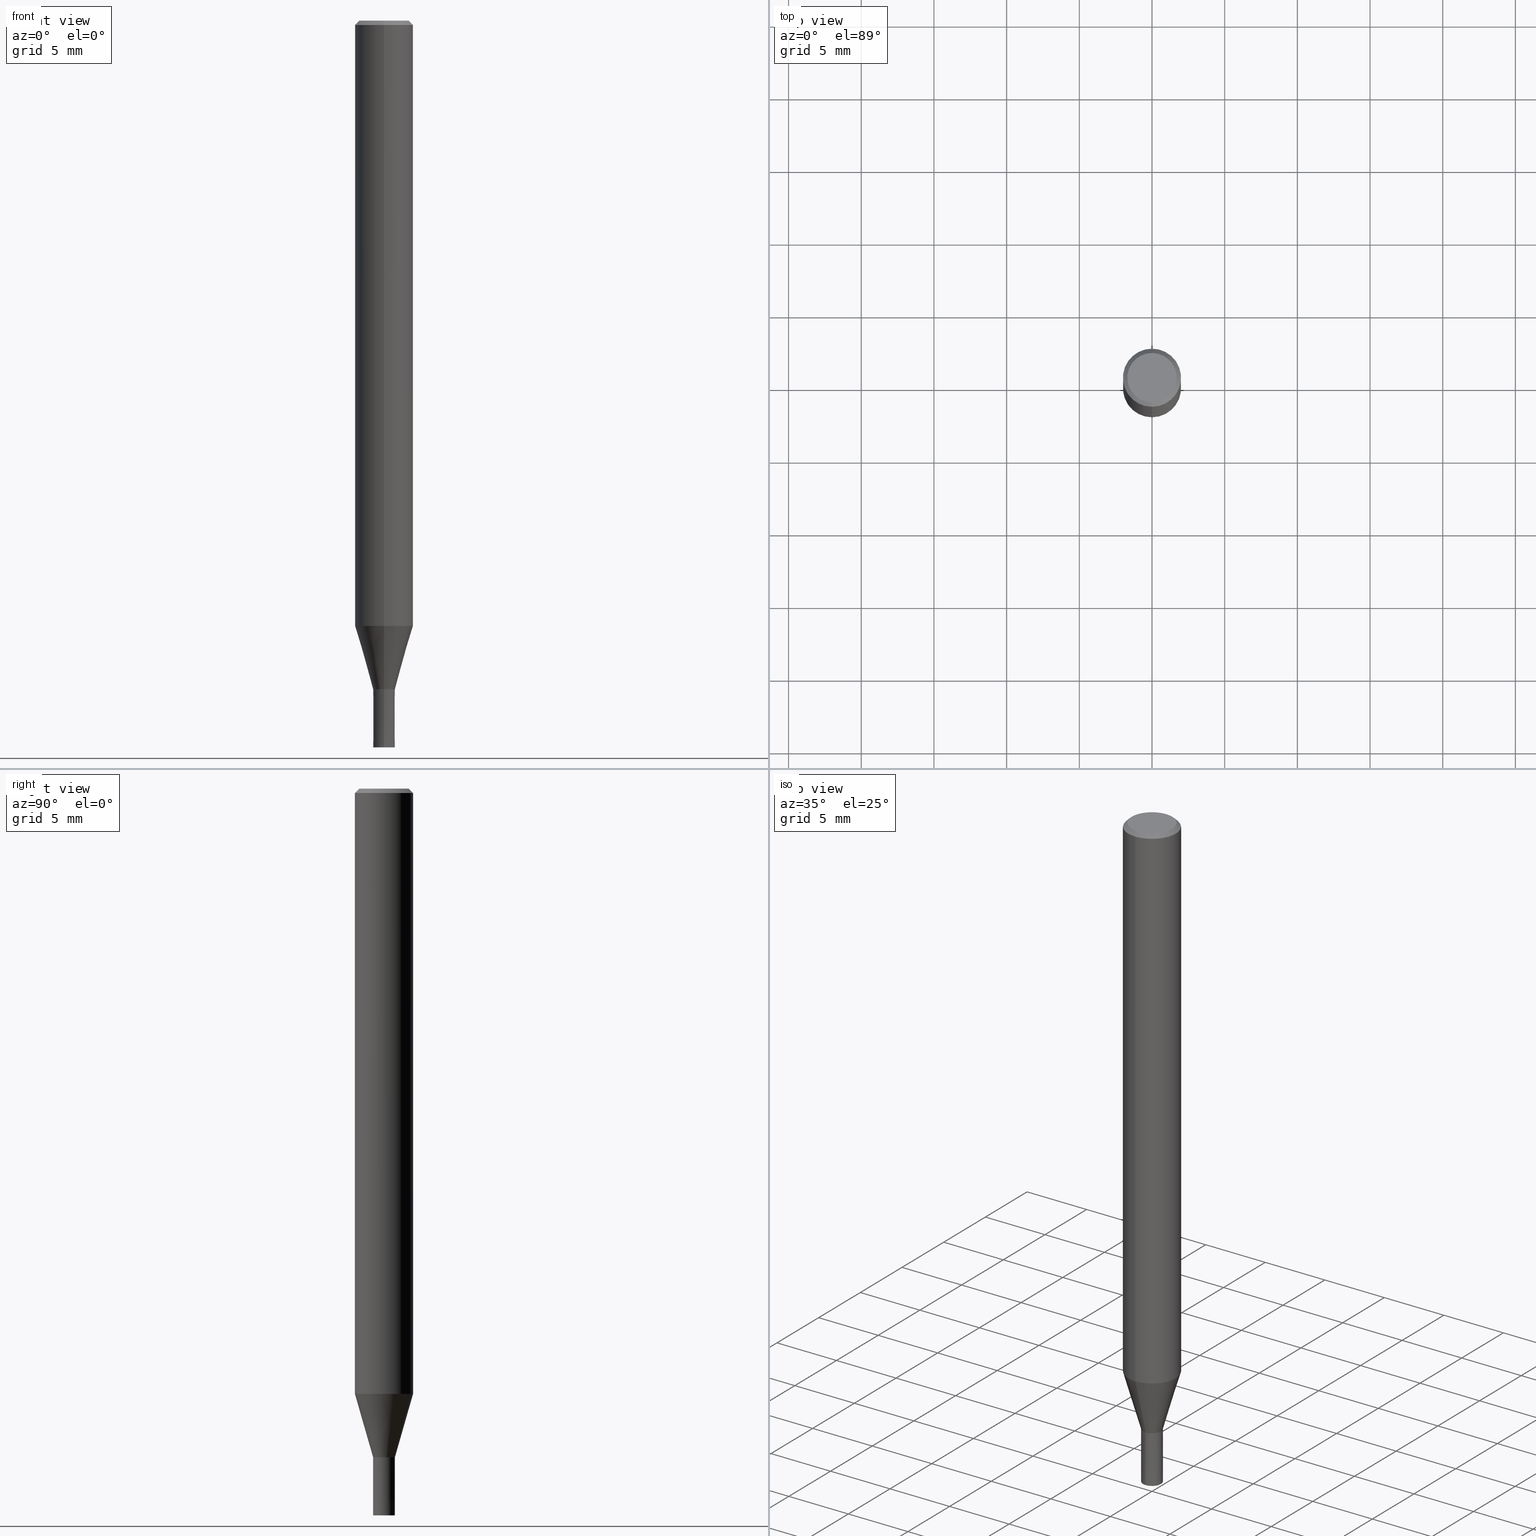
[diagram: canonical four-view strip — front | top / right | iso, engineering-drawing reading convention]
A machine part, canonical four-view strip (front | top / right | iso — engineering-drawing reading convention). The complete STEP part file that produces these views, byte-faithful:
ISO-10303-21;
HEADER;
FILE_DESCRIPTION(('no description'),'unknown implementation level');
FILE_NAME('CZS4015-0400-Huellk.stp','  ',('CIMSOURCE GmbH'),('CADClick - KiM GmbH - www.kimweb.de'),'unknown preprocess','ACIS','unknown authorization');
FILE_SCHEMA(('automotive_design'));
ENDSEC;
DATA;
#1=MECHANICAL_DESIGN_GEOMETRIC_PRESENTATION_REPRESENTATION(' ',(#14,#15,#16,#17,#18,#19,#20,#21,#22,#23,#24,#25,#26,#27,#28,#29,#30,#31,#32,#33,#34,#35,#36,#37,#38,#39,#40,#41,#42,#43,#44,#45,#46,#47,#48,#49,#50,#51,#52,#53,#54,#55,#56,#57,#58,#59,#60,#61,#62,#63,#64),#10);
#2=PRODUCT_DEFINITION_CONTEXT('',#65,'design');
#3=APPLICATION_PROTOCOL_DEFINITION('INTERNATIONAL STANDARD','automotive_design',1994,#65);
#4=PRODUCT_CATEGORY_RELATIONSHIP('NONE','NONE',#66,#67);
#5=SHAPE_DEFINITION_REPRESENTATION(#68,#69);
#6=PRODUCT_DEFINITION_CONTEXT('',#70,'design');
#7=APPLICATION_PROTOCOL_DEFINITION('INTERNATIONAL STANDARD','automotive_design',1994,#70);
#8=PRODUCT_CATEGORY_RELATIONSHIP('NONE','NONE',#71,#72);
#9=SHAPE_DEFINITION_REPRESENTATION(#73,#74);
#10= (GEOMETRIC_REPRESENTATION_CONTEXT(3)GLOBAL_UNCERTAINTY_ASSIGNED_CONTEXT((#77))GLOBAL_UNIT_ASSIGNED_CONTEXT((#79,#80,#81))REPRESENTATION_CONTEXT('NONE','WORKSPACE'));
#14=STYLED_ITEM('',(#83),#84);
#15=STYLED_ITEM('',(#85),#86);
#16=STYLED_ITEM('',(#87),#88);
#17=STYLED_ITEM('',(#89),#90);
#18=STYLED_ITEM('',(#91),#92);
#19=STYLED_ITEM('',(#93),#94);
#20=STYLED_ITEM('',(#95),#96);
#21=STYLED_ITEM('',(#97),#98);
#22=STYLED_ITEM('',(#99),#100);
#23=STYLED_ITEM('',(#101),#102);
#24=STYLED_ITEM('',(#103),#104);
#25=STYLED_ITEM('',(#105),#106);
#26=STYLED_ITEM('',(#107),#108);
#27=STYLED_ITEM('',(#109),#110);
#28=STYLED_ITEM('',(#111),#112);
#29=STYLED_ITEM('',(#113),#114);
#30=STYLED_ITEM('',(#115),#116);
#31=STYLED_ITEM('',(#117),#118);
#32=STYLED_ITEM('',(#119),#120);
#33=STYLED_ITEM('',(#121),#122);
#34=STYLED_ITEM('',(#123),#124);
#35=STYLED_ITEM('',(#125),#126);
#36=STYLED_ITEM('',(#127),#128);
#37=STYLED_ITEM('',(#129),#130);
#38=STYLED_ITEM('',(#131),#132);
#39=STYLED_ITEM('',(#133),#134);
#40=STYLED_ITEM('',(#135),#136);
#41=STYLED_ITEM('',(#137),#138);
#42=STYLED_ITEM('',(#139),#140);
#43=STYLED_ITEM('',(#141),#142);
#44=STYLED_ITEM('',(#143),#144);
#45=STYLED_ITEM('',(#145),#146);
#46=STYLED_ITEM('',(#147),#148);
#47=STYLED_ITEM('',(#149),#150);
#48=STYLED_ITEM('',(#151),#152);
#49=STYLED_ITEM('',(#153),#154);
#50=STYLED_ITEM('',(#155),#156);
#51=STYLED_ITEM('',(#157),#158);
#52=STYLED_ITEM('',(#159),#160);
#53=STYLED_ITEM('',(#161),#162);
#54=STYLED_ITEM('',(#163),#164);
#55=STYLED_ITEM('',(#165),#166);
#56=STYLED_ITEM('',(#167),#168);
#57=STYLED_ITEM('',(#169),#170);
#58=STYLED_ITEM('',(#171),#172);
#59=STYLED_ITEM('',(#173),#174);
#60=STYLED_ITEM('',(#175),#176);
#61=STYLED_ITEM('',(#177),#178);
#62=STYLED_ITEM('',(#179),#180);
#63=STYLED_ITEM('',(#181),#182);
#64=STYLED_ITEM('',(#183),#184);
#65=APPLICATION_CONTEXT(' ');
#66=PRODUCT_CATEGORY('part','NONE');
#67=PRODUCT_RELATED_PRODUCT_CATEGORY('detail',' ',(#185));
#68=PRODUCT_DEFINITION_SHAPE('NONE','NONE',#186);
#69=ADVANCED_BREP_SHAPE_REPRESENTATION('1',(#176,#187),#10);
#70=APPLICATION_CONTEXT(' ');
#71=PRODUCT_CATEGORY('part','NONE');
#72=PRODUCT_RELATED_PRODUCT_CATEGORY('detail',' ',(#188));
#73=PRODUCT_DEFINITION_SHAPE('NONE','NONE',#189);
#74=ADVANCED_BREP_SHAPE_REPRESENTATION('2',(#128,#190),#10);
#77=UNCERTAINTY_MEASURE_WITH_UNIT(LENGTH_MEASURE(1.0E-006),#79,'','');
#79= (CONVERSION_BASED_UNIT('MILLIMETRE',#193)LENGTH_UNIT()NAMED_UNIT(#196));
#80= (NAMED_UNIT(#198)PLANE_ANGLE_UNIT()SI_UNIT($,.RADIAN.));
#81= (NAMED_UNIT(#198)SOLID_ANGLE_UNIT()SI_UNIT($,.STERADIAN.));
#83=PRESENTATION_STYLE_ASSIGNMENT((#204));
#84=VERTEX_POINT('',#205);
#85=PRESENTATION_STYLE_ASSIGNMENT((#206));
#86=EDGE_CURVE('',#106,#84,#207,.T.);
#87=PRESENTATION_STYLE_ASSIGNMENT((#208));
#88=VERTEX_POINT('',#209);
#89=PRESENTATION_STYLE_ASSIGNMENT((#210));
#90=VERTEX_POINT('',#211);
#91=PRESENTATION_STYLE_ASSIGNMENT((#212));
#92=EDGE_CURVE('',#90,#154,#213,.T.);
#93=PRESENTATION_STYLE_ASSIGNMENT((#214));
#94=ADVANCED_FACE('',(#215),#216,.T.);
#95=PRESENTATION_STYLE_ASSIGNMENT((#217));
#96=ADVANCED_FACE('',(#218),#219,.T.);
#97=PRESENTATION_STYLE_ASSIGNMENT((#220));
#98=ADVANCED_FACE('',(#221),#222,.T.);
#99=PRESENTATION_STYLE_ASSIGNMENT((#223));
#100=EDGE_CURVE('',#88,#130,#224,.T.);
#101=PRESENTATION_STYLE_ASSIGNMENT((#225));
#102=VERTEX_POINT('',#226);
#103=PRESENTATION_STYLE_ASSIGNMENT((#227));
#104=EDGE_CURVE('',#154,#102,#228,.T.);
#105=PRESENTATION_STYLE_ASSIGNMENT((#229));
#106=VERTEX_POINT('',#230);
#107=PRESENTATION_STYLE_ASSIGNMENT((#231));
#108=EDGE_CURVE('',#106,#114,#232,.T.);
#109=PRESENTATION_STYLE_ASSIGNMENT((#233));
#110=ADVANCED_FACE('',(#234),#235,.T.);
#111=PRESENTATION_STYLE_ASSIGNMENT((#236));
#112=ADVANCED_FACE('',(#237),#238,.T.);
#113=PRESENTATION_STYLE_ASSIGNMENT((#239));
#114=VERTEX_POINT('',#240);
#115=PRESENTATION_STYLE_ASSIGNMENT((#241));
#116=ADVANCED_FACE('',(#242),#243,.T.);
#117=PRESENTATION_STYLE_ASSIGNMENT((#244));
#118=VERTEX_POINT('',#245);
#119=PRESENTATION_STYLE_ASSIGNMENT((#246));
#120=VERTEX_POINT('',#247);
#121=PRESENTATION_STYLE_ASSIGNMENT((#248));
#122=EDGE_CURVE('',#102,#118,#249,.T.);
#123=PRESENTATION_STYLE_ASSIGNMENT((#250));
#124=VERTEX_POINT('',#251);
#125=PRESENTATION_STYLE_ASSIGNMENT((#252));
#126=EDGE_CURVE('',#170,#124,#253,.T.);
#127=PRESENTATION_STYLE_ASSIGNMENT((#254));
#128=MANIFOLD_SOLID_BREP('2',#255);
#129=PRESENTATION_STYLE_ASSIGNMENT((#256));
#130=VERTEX_POINT('',#257);
#131=PRESENTATION_STYLE_ASSIGNMENT((#258));
#132=EDGE_CURVE('',#130,#88,#259,.T.);
#133=PRESENTATION_STYLE_ASSIGNMENT((#260));
#134=ADVANCED_FACE('',(#261),#262,.T.);
#135=PRESENTATION_STYLE_ASSIGNMENT((#263));
#136=EDGE_CURVE('',#114,#106,#264,.T.);
#137=PRESENTATION_STYLE_ASSIGNMENT((#265));
#138=EDGE_CURVE('',#118,#102,#266,.T.);
#139=PRESENTATION_STYLE_ASSIGNMENT((#267));
#140=EDGE_CURVE('',#90,#88,#268,.T.);
#141=PRESENTATION_STYLE_ASSIGNMENT((#269));
#142=ADVANCED_FACE('',(#270),#271,.T.);
#143=PRESENTATION_STYLE_ASSIGNMENT((#272));
#144=VERTEX_POINT('',#273);
#145=PRESENTATION_STYLE_ASSIGNMENT((#274));
#146=ADVANCED_FACE('',(#275),#276,.T.);
#147=PRESENTATION_STYLE_ASSIGNMENT((#277));
#148=EDGE_CURVE('',#130,#154,#278,.T.);
#149=PRESENTATION_STYLE_ASSIGNMENT((#279));
#150=ADVANCED_FACE('',(#280),#281,.T.);
#151=PRESENTATION_STYLE_ASSIGNMENT((#282));
#152=EDGE_CURVE('',#174,#114,#283,.T.);
#153=PRESENTATION_STYLE_ASSIGNMENT((#284));
#154=VERTEX_POINT('',#285);
#155=PRESENTATION_STYLE_ASSIGNMENT((#286));
#156=EDGE_CURVE('',#118,#90,#287,.T.);
#157=PRESENTATION_STYLE_ASSIGNMENT((#288));
#158=EDGE_CURVE('',#144,#120,#289,.T.);
#159=PRESENTATION_STYLE_ASSIGNMENT((#290));
#160=EDGE_CURVE('',#124,#144,#291,.T.);
#161=PRESENTATION_STYLE_ASSIGNMENT((#292));
#162=EDGE_CURVE('',#170,#120,#293,.T.);
#163=PRESENTATION_STYLE_ASSIGNMENT((#294));
#164=ADVANCED_FACE('',(#295),#296,.T.);
#165=PRESENTATION_STYLE_ASSIGNMENT((#297));
#166=EDGE_CURVE('',#174,#84,#298,.T.);
#167=PRESENTATION_STYLE_ASSIGNMENT((#299));
#168=EDGE_CURVE('',#144,#124,#300,.T.);
#169=PRESENTATION_STYLE_ASSIGNMENT((#301));
#170=VERTEX_POINT('',#302);
#171=PRESENTATION_STYLE_ASSIGNMENT((#303));
#172=EDGE_CURVE('',#84,#174,#304,.T.);
#173=PRESENTATION_STYLE_ASSIGNMENT((#305));
#174=VERTEX_POINT('',#306);
#175=PRESENTATION_STYLE_ASSIGNMENT((#307));
#176=MANIFOLD_SOLID_BREP('1',#308);
#177=PRESENTATION_STYLE_ASSIGNMENT((#309));
#178=EDGE_CURVE('',#120,#170,#310,.T.);
#179=PRESENTATION_STYLE_ASSIGNMENT((#311));
#180=ADVANCED_FACE('',(#312),#313,.T.);
#181=PRESENTATION_STYLE_ASSIGNMENT((#314));
#182=EDGE_CURVE('',#154,#90,#315,.T.);
#183=PRESENTATION_STYLE_ASSIGNMENT((#316));
#184=ADVANCED_FACE('',(#317,#318),#319,.T.);
#185=PRODUCT('1','1','PART-1-DESC',(#320));
#186=PRODUCT_DEFINITION('NONE','NONE',#321,#2);
#187=AXIS2_PLACEMENT_3D('',#322,#323,#324);
#188=PRODUCT('2','2','PART-2-DESC',(#325));
#189=PRODUCT_DEFINITION('NONE','NONE',#326,#6);
#190=AXIS2_PLACEMENT_3D('',#327,#328,#329);
#193=LENGTH_MEASURE_WITH_UNIT(LENGTH_MEASURE(1.0),#330);
#196=DIMENSIONAL_EXPONENTS(1.0,0.0,0.0,0.0,0.0,0.0,0.0);
#198=DIMENSIONAL_EXPONENTS(0.0,0.0,0.0,0.0,0.0,0.0,0.0);
#204=POINT_STYLE(' ',#331,POSITIVE_LENGTH_MEASURE(1.0E-006),#332);
#205=CARTESIAN_POINT('',(2.44915147732706E-016,-1.99995,-41.641));
#206=CURVE_STYLE('',#333,POSITIVE_LENGTH_MEASURE(1.0E-006),#334);
#207=LINE('',#335,#336);
#208=POINT_STYLE(' ',#337,POSITIVE_LENGTH_MEASURE(1.0E-006),#338);
#209=CARTESIAN_POINT('',(2.08183080149804E-016,-1.7,0.0));
#210=POINT_STYLE(' ',#339,POSITIVE_LENGTH_MEASURE(1.0E-006),#340);
#211=CARTESIAN_POINT('',(2.44921270764475E-016,-2.0,-0.299999999999997));
#212=CURVE_STYLE('',#341,POSITIVE_LENGTH_MEASURE(1.0E-006),#342);
#213=CIRCLE('',#343,2.0);
#214=SURFACE_STYLE_USAGE(.BOTH.,#344);
#215=FACE_OUTER_BOUND('',#345,.T.);
#216=CONICAL_SURFACE('',#346,1.85,0.785398163397453);
#217=SURFACE_STYLE_USAGE(.BOTH.,#347);
#218=FACE_OUTER_BOUND('',#348,.T.);
#219=CYLINDRICAL_SURFACE('',#349,2.0);
#220=SURFACE_STYLE_USAGE(.BOTH.,#350);
#221=FACE_OUTER_BOUND('',#351,.T.);
#222=CONICAL_SURFACE('',#352,1.37495,0.279268973819818);
#223=CURVE_STYLE('',#353,POSITIVE_LENGTH_MEASURE(1.0E-006),#354);
#224=CIRCLE('',#355,1.7);
#225=POINT_STYLE(' ',#356,POSITIVE_LENGTH_MEASURE(1.0E-006),#357);
#226=CARTESIAN_POINT('',(0.0,2.0,-41.641));
#227=CURVE_STYLE('',#358,POSITIVE_LENGTH_MEASURE(1.0E-006),#359);
#228=LINE('',#360,#361);
#229=POINT_STYLE(' ',#362,POSITIVE_LENGTH_MEASURE(1.0E-006),#363);
#230=CARTESIAN_POINT('',(9.18393535049092E-017,-0.74995,-46.0));
#231=CURVE_STYLE('',#364,POSITIVE_LENGTH_MEASURE(1.0E-006),#365);
#232=CIRCLE('',#366,0.74995);
#233=SURFACE_STYLE_USAGE(.BOTH.,#367);
#234=FACE_OUTER_BOUND('',#368,.T.);
#235=CONICAL_SURFACE('',#369,0.74995,2.49999999947889E-005);
#236=SURFACE_STYLE_USAGE(.BOTH.,#370);
#237=FACE_OUTER_BOUND('',#371,.T.);
#238=PLANE('',#372);
#239=POINT_STYLE(' ',#373,POSITIVE_LENGTH_MEASURE(1.0E-006),#374);
#240=CARTESIAN_POINT('',(0.0,0.74995,-46.0));
#241=SURFACE_STYLE_USAGE(.BOTH.,#375);
#242=FACE_OUTER_BOUND('',#376,.T.);
#243=PLANE('',#377);
#244=POINT_STYLE(' ',#378,POSITIVE_LENGTH_MEASURE(1.0E-006),#379);
#245=CARTESIAN_POINT('',(2.44921270764475E-016,-2.0,-41.641));
#246=POINT_STYLE(' ',#380,POSITIVE_LENGTH_MEASURE(1.0E-006),#381);
#247=CARTESIAN_POINT('',(0.0,0.75,-50.0));
#248=CURVE_STYLE('',#382,POSITIVE_LENGTH_MEASURE(1.0E-006),#383);
#249=CIRCLE('',#384,2.0);
#250=POINT_STYLE(' ',#385,POSITIVE_LENGTH_MEASURE(1.0E-006),#386);
#251=CARTESIAN_POINT('',(9.18332304731401E-017,-0.7499,-46.0));
#252=CURVE_STYLE('',#387,POSITIVE_LENGTH_MEASURE(1.0E-006),#388);
#253=LINE('',#389,#390);
#254=SURFACE_STYLE_USAGE(.BOTH.,#391);
#255=CLOSED_SHELL('',(#110,#112,#142,#146));
#256=POINT_STYLE(' ',#392,POSITIVE_LENGTH_MEASURE(1.0E-006),#393);
#257=CARTESIAN_POINT('',(0.0,1.7,0.0));
#258=CURVE_STYLE('',#394,POSITIVE_LENGTH_MEASURE(1.0E-006),#395);
#259=CIRCLE('',#396,1.7);
#260=SURFACE_STYLE_USAGE(.BOTH.,#397);
#261=FACE_OUTER_BOUND('',#398,.T.);
#262=PLANE('',#399);
#263=CURVE_STYLE('',#400,POSITIVE_LENGTH_MEASURE(1.0E-006),#401);
#264=CIRCLE('',#402,0.74995);
#265=CURVE_STYLE('',#403,POSITIVE_LENGTH_MEASURE(1.0E-006),#404);
#266=CIRCLE('',#405,2.0);
#267=CURVE_STYLE('',#406,POSITIVE_LENGTH_MEASURE(1.0E-006),#407);
#268=LINE('',#408,#409);
#269=SURFACE_STYLE_USAGE(.BOTH.,#410);
#270=FACE_OUTER_BOUND('',#411,.T.);
#271=CONICAL_SURFACE('',#412,0.74995,2.49999999947889E-005);
#272=POINT_STYLE(' ',#413,POSITIVE_LENGTH_MEASURE(1.0E-006),#414);
#273=CARTESIAN_POINT('',(0.0,0.7499,-46.0));
#274=SURFACE_STYLE_USAGE(.BOTH.,#415);
#275=FACE_OUTER_BOUND('',#416,.T.);
#276=PLANE('',#417);
#277=CURVE_STYLE('',#418,POSITIVE_LENGTH_MEASURE(1.0E-006),#419);
#278=LINE('',#420,#421);
#279=SURFACE_STYLE_USAGE(.BOTH.,#422);
#280=FACE_OUTER_BOUND('',#423,.T.);
#281=CONICAL_SURFACE('',#424,1.85,0.785398163397453);
#282=CURVE_STYLE('',#425,POSITIVE_LENGTH_MEASURE(1.0E-006),#426);
#283=LINE('',#427,#428);
#284=POINT_STYLE(' ',#429,POSITIVE_LENGTH_MEASURE(1.0E-006),#430);
#285=CARTESIAN_POINT('',(0.0,2.0,-0.299999999999997));
#286=CURVE_STYLE('',#431,POSITIVE_LENGTH_MEASURE(1.0E-006),#432);
#287=LINE('',#433,#434);
#288=CURVE_STYLE('',#435,POSITIVE_LENGTH_MEASURE(1.0E-006),#436);
#289=LINE('',#437,#438);
#290=CURVE_STYLE('',#439,POSITIVE_LENGTH_MEASURE(1.0E-006),#440);
#291=CIRCLE('',#441,0.7499);
#292=CURVE_STYLE('',#442,POSITIVE_LENGTH_MEASURE(1.0E-006),#443);
#293=CIRCLE('',#444,0.75);
#294=SURFACE_STYLE_USAGE(.BOTH.,#445);
#295=FACE_OUTER_BOUND('',#446,.T.);
#296=CONICAL_SURFACE('',#447,1.37495,0.279268973819818);
#297=CURVE_STYLE('',#448,POSITIVE_LENGTH_MEASURE(1.0E-006),#449);
#298=CIRCLE('',#450,1.99995);
#299=CURVE_STYLE('',#451,POSITIVE_LENGTH_MEASURE(1.0E-006),#452);
#300=CIRCLE('',#453,0.7499);
#301=POINT_STYLE(' ',#454,POSITIVE_LENGTH_MEASURE(1.0E-006),#455);
#302=CARTESIAN_POINT('',(9.18454765366783E-017,-0.75,-50.0));
#303=CURVE_STYLE('',#456,POSITIVE_LENGTH_MEASURE(1.0E-006),#457);
#304=CIRCLE('',#458,1.99995);
#305=POINT_STYLE(' ',#459,POSITIVE_LENGTH_MEASURE(1.0E-006),#460);
#306=CARTESIAN_POINT('',(0.0,1.99995,-41.641));
#307=SURFACE_STYLE_USAGE(.BOTH.,#461);
#308=CLOSED_SHELL('',(#164,#180,#150,#184,#116,#94,#96,#98,#134));
#309=CURVE_STYLE('',#462,POSITIVE_LENGTH_MEASURE(1.0E-006),#463);
#310=CIRCLE('',#464,0.75);
#311=SURFACE_STYLE_USAGE(.BOTH.,#465);
#312=FACE_OUTER_BOUND('',#466,.T.);
#313=CYLINDRICAL_SURFACE('',#467,2.0);
#314=CURVE_STYLE('',#468,POSITIVE_LENGTH_MEASURE(1.0E-006),#469);
#315=CIRCLE('',#470,2.0);
#316=SURFACE_STYLE_USAGE(.BOTH.,#471);
#317=FACE_OUTER_BOUND('',#472,.T.);
#318=FACE_BOUND('',#473,.T.);
#319=PLANE('',#474);
#320=PRODUCT_CONTEXT('',#65,'mechanical');
#321=PRODUCT_DEFINITION_FORMATION_WITH_SPECIFIED_SOURCE(' ','NONE',#185,.NOT_KNOWN.);
#322=CARTESIAN_POINT('',(0.0,0.0,0.0));
#323=DIRECTION('',(0.0,0.0,1.0));
#324=DIRECTION('',(1.0,0.0,0.0));
#325=PRODUCT_CONTEXT('',#70,'mechanical');
#326=PRODUCT_DEFINITION_FORMATION_WITH_SPECIFIED_SOURCE(' ','NONE',#188,.NOT_KNOWN.);
#327=CARTESIAN_POINT('',(0.0,0.0,0.0));
#328=DIRECTION('',(0.0,0.0,1.0));
#329=DIRECTION('',(1.0,0.0,0.0));
#330= (NAMED_UNIT(#196)LENGTH_UNIT()SI_UNIT(.MILLI.,.METRE.));
#331=PRE_DEFINED_MARKER('');
#332=COLOUR_RGB('',0.498039215803146,0.498039215803146,0.498039215803146);
#333=DRAUGHTING_PRE_DEFINED_CURVE_FONT('continuous');
#334=COLOUR_RGB('',0.498039215803146,0.498039215803146,0.498039215803146);
#335=CARTESIAN_POINT('',(1.68377250618808E-016,-1.37495,-43.8205));
#336=VECTOR('',#476,1.0);
#337=PRE_DEFINED_MARKER('');
#338=COLOUR_RGB('',0.498039215803146,0.498039215803146,0.498039215803146);
#339=PRE_DEFINED_MARKER('');
#340=COLOUR_RGB('',0.498039215803146,0.498039215803146,0.498039215803146);
#341=DRAUGHTING_PRE_DEFINED_CURVE_FONT('continuous');
#342=COLOUR_RGB('',0.498039215803146,0.498039215803146,0.498039215803146);
#343=AXIS2_PLACEMENT_3D('',#477,#478,#479);
#344=SURFACE_SIDE_STYLE('',(#480));
#345=EDGE_LOOP('',(#481,#482,#483,#484));
#346=AXIS2_PLACEMENT_3D('',#485,#486,#487);
#347=SURFACE_SIDE_STYLE('',(#488));
#348=EDGE_LOOP('',(#489,#490,#491,#492));
#349=AXIS2_PLACEMENT_3D('',#493,#494,#495);
#350=SURFACE_SIDE_STYLE('',(#496));
#351=EDGE_LOOP('',(#497,#498,#499,#500));
#352=AXIS2_PLACEMENT_3D('',#501,#502,#503);
#353=DRAUGHTING_PRE_DEFINED_CURVE_FONT('continuous');
#354=COLOUR_RGB('',0.498039215803146,0.498039215803146,0.498039215803146);
#355=AXIS2_PLACEMENT_3D('',#504,#505,#506);
#356=PRE_DEFINED_MARKER('');
#357=COLOUR_RGB('',0.498039215803146,0.498039215803146,0.498039215803146);
#358=DRAUGHTING_PRE_DEFINED_CURVE_FONT('continuous');
#359=COLOUR_RGB('',0.498039215803146,0.498039215803146,0.498039215803146);
#360=CARTESIAN_POINT('',(-2.44921270764475E-016,2.0,-20.9705));
#361=VECTOR('',#507,1.0);
#362=PRE_DEFINED_MARKER('');
#363=COLOUR_RGB('',0.498039215803146,0.498039215803146,0.498039215803146);
#364=DRAUGHTING_PRE_DEFINED_CURVE_FONT('continuous');
#365=COLOUR_RGB('',0.498039215803146,0.498039215803146,0.498039215803146);
#366=AXIS2_PLACEMENT_3D('',#508,#509,#510);
#367=SURFACE_SIDE_STYLE('',(#511));
#368=EDGE_LOOP('',(#512,#513,#514,#515));
#369=AXIS2_PLACEMENT_3D('',#516,#517,#518);
#370=SURFACE_SIDE_STYLE('',(#519));
#371=EDGE_LOOP('',(#520,#521));
#372=AXIS2_PLACEMENT_3D('',#522,#523,#524);
#373=PRE_DEFINED_MARKER('');
#374=COLOUR_RGB('',0.498039215803146,0.498039215803146,0.498039215803146);
#375=SURFACE_SIDE_STYLE('',(#525));
#376=EDGE_LOOP('',(#526,#527));
#377=AXIS2_PLACEMENT_3D('',#528,#529,#530);
#378=PRE_DEFINED_MARKER('');
#379=COLOUR_RGB('',0.498039215803146,0.498039215803146,0.498039215803146);
#380=PRE_DEFINED_MARKER('');
#381=COLOUR_RGB('',0.800000011920929,0.800000011920929,0.800000011920929);
#382=DRAUGHTING_PRE_DEFINED_CURVE_FONT('continuous');
#383=COLOUR_RGB('',0.498039215803146,0.498039215803146,0.498039215803146);
#384=AXIS2_PLACEMENT_3D('',#531,#532,#533);
#385=PRE_DEFINED_MARKER('');
#386=COLOUR_RGB('',0.800000011920929,0.800000011920929,0.800000011920929);
#387=DRAUGHTING_PRE_DEFINED_CURVE_FONT('continuous');
#388=COLOUR_RGB('',0.800000011920929,0.800000011920929,0.800000011920929);
#389=CARTESIAN_POINT('',(9.18393535049092E-017,-0.74995,-48.0));
#390=VECTOR('',#534,1.0);
#391=SURFACE_SIDE_STYLE('',(#535));
#392=PRE_DEFINED_MARKER('');
#393=COLOUR_RGB('',0.498039215803146,0.498039215803146,0.498039215803146);
#394=DRAUGHTING_PRE_DEFINED_CURVE_FONT('continuous');
#395=COLOUR_RGB('',0.498039215803146,0.498039215803146,0.498039215803146);
#396=AXIS2_PLACEMENT_3D('',#536,#537,#538);
#397=SURFACE_SIDE_STYLE('',(#539));
#398=EDGE_LOOP('',(#540,#541));
#399=AXIS2_PLACEMENT_3D('',#542,#543,#544);
#400=DRAUGHTING_PRE_DEFINED_CURVE_FONT('continuous');
#401=COLOUR_RGB('',0.498039215803146,0.498039215803146,0.498039215803146);
#402=AXIS2_PLACEMENT_3D('',#545,#546,#547);
#403=DRAUGHTING_PRE_DEFINED_CURVE_FONT('continuous');
#404=COLOUR_RGB('',0.498039215803146,0.498039215803146,0.498039215803146);
#405=AXIS2_PLACEMENT_3D('',#548,#549,#550);
#406=DRAUGHTING_PRE_DEFINED_CURVE_FONT('continuous');
#407=COLOUR_RGB('',0.498039215803146,0.498039215803146,0.498039215803146);
#408=CARTESIAN_POINT('',(2.2655217545714E-016,-1.85,-0.149999999999999));
#409=VECTOR('',#551,1.0);
#410=SURFACE_SIDE_STYLE('',(#552));
#411=EDGE_LOOP('',(#553,#554,#555,#556));
#412=AXIS2_PLACEMENT_3D('',#557,#558,#559);
#413=PRE_DEFINED_MARKER('');
#414=COLOUR_RGB('',0.800000011920929,0.800000011920929,0.800000011920929);
#415=SURFACE_SIDE_STYLE('',(#560));
#416=EDGE_LOOP('',(#561,#562));
#417=AXIS2_PLACEMENT_3D('',#563,#564,#565);
#418=DRAUGHTING_PRE_DEFINED_CURVE_FONT('continuous');
#419=COLOUR_RGB('',0.498039215803146,0.498039215803146,0.498039215803146);
#420=CARTESIAN_POINT('',(-2.2655217545714E-016,1.85,-0.149999999999999));
#421=VECTOR('',#566,1.0);
#422=SURFACE_SIDE_STYLE('',(#567));
#423=EDGE_LOOP('',(#568,#569,#570,#571));
#424=AXIS2_PLACEMENT_3D('',#572,#573,#574);
#425=DRAUGHTING_PRE_DEFINED_CURVE_FONT('continuous');
#426=COLOUR_RGB('',0.498039215803146,0.498039215803146,0.498039215803146);
#427=CARTESIAN_POINT('',(-1.68377250618808E-016,1.37495,-43.8205));
#428=VECTOR('',#575,1.0);
#429=PRE_DEFINED_MARKER('');
#430=COLOUR_RGB('',0.498039215803146,0.498039215803146,0.498039215803146);
#431=DRAUGHTING_PRE_DEFINED_CURVE_FONT('continuous');
#432=COLOUR_RGB('',0.498039215803146,0.498039215803146,0.498039215803146);
#433=CARTESIAN_POINT('',(2.44921270764475E-016,-2.0,-20.9705));
#434=VECTOR('',#576,1.0);
#435=DRAUGHTING_PRE_DEFINED_CURVE_FONT('continuous');
#436=COLOUR_RGB('',0.800000011920929,0.800000011920929,0.800000011920929);
#437=CARTESIAN_POINT('',(-9.18393535049092E-017,0.74995,-48.0));
#438=VECTOR('',#577,1.0);
#439=DRAUGHTING_PRE_DEFINED_CURVE_FONT('continuous');
#440=COLOUR_RGB('',0.800000011920929,0.800000011920929,0.800000011920929);
#441=AXIS2_PLACEMENT_3D('',#578,#579,#580);
#442=DRAUGHTING_PRE_DEFINED_CURVE_FONT('continuous');
#443=COLOUR_RGB('',0.800000011920929,0.800000011920929,0.800000011920929);
#444=AXIS2_PLACEMENT_3D('',#581,#582,#583);
#445=SURFACE_SIDE_STYLE('',(#584));
#446=EDGE_LOOP('',(#585,#586,#587,#588));
#447=AXIS2_PLACEMENT_3D('',#589,#590,#591);
#448=DRAUGHTING_PRE_DEFINED_CURVE_FONT('continuous');
#449=COLOUR_RGB('',0.498039215803146,0.498039215803146,0.498039215803146);
#450=AXIS2_PLACEMENT_3D('',#592,#593,#594);
#451=DRAUGHTING_PRE_DEFINED_CURVE_FONT('continuous');
#452=COLOUR_RGB('',0.800000011920929,0.800000011920929,0.800000011920929);
#453=AXIS2_PLACEMENT_3D('',#595,#596,#597);
#454=PRE_DEFINED_MARKER('');
#455=COLOUR_RGB('',0.800000011920929,0.800000011920929,0.800000011920929);
#456=DRAUGHTING_PRE_DEFINED_CURVE_FONT('continuous');
#457=COLOUR_RGB('',0.498039215803146,0.498039215803146,0.498039215803146);
#458=AXIS2_PLACEMENT_3D('',#598,#599,#600);
#459=PRE_DEFINED_MARKER('');
#460=COLOUR_RGB('',0.498039215803146,0.498039215803146,0.498039215803146);
#461=SURFACE_SIDE_STYLE('',(#601));
#462=DRAUGHTING_PRE_DEFINED_CURVE_FONT('continuous');
#463=COLOUR_RGB('',0.800000011920929,0.800000011920929,0.800000011920929);
#464=AXIS2_PLACEMENT_3D('',#602,#603,#604);
#465=SURFACE_SIDE_STYLE('',(#605));
#466=EDGE_LOOP('',(#606,#607,#608,#609));
#467=AXIS2_PLACEMENT_3D('',#610,#611,#612);
#468=DRAUGHTING_PRE_DEFINED_CURVE_FONT('continuous');
#469=COLOUR_RGB('',0.498039215803146,0.498039215803146,0.498039215803146);
#470=AXIS2_PLACEMENT_3D('',#613,#614,#615);
#471=SURFACE_SIDE_STYLE('',(#616));
#472=EDGE_LOOP('',(#617,#618));
#473=EDGE_LOOP('',(#619,#620));
#474=AXIS2_PLACEMENT_3D('',#621,#622,#623);
#476=DIRECTION('',(3.375664374138E-017,-0.27565301809855,0.961257204713265));
#477=CARTESIAN_POINT('',(0.0,0.0,-0.299999999999997));
#478=DIRECTION('',(0.0,0.0,-1.0));
#479=DIRECTION('',(0.0,1.0,0.0));
#480=SURFACE_STYLE_FILL_AREA(#624);
#481=ORIENTED_EDGE('',*,*,#148,.T.);
#482=ORIENTED_EDGE('',*,*,#92,.F.);
#483=ORIENTED_EDGE('',*,*,#140,.T.);
#484=ORIENTED_EDGE('',*,*,#100,.T.);
#485=CARTESIAN_POINT('',(0.0,0.0,-0.149999999999999));
#486=DIRECTION('',(0.0,-0.0,-1.0));
#487=DIRECTION('',(0.0,1.0,0.0));
#488=SURFACE_STYLE_FILL_AREA(#625);
#489=ORIENTED_EDGE('',*,*,#104,.T.);
#490=ORIENTED_EDGE('',*,*,#138,.F.);
#491=ORIENTED_EDGE('',*,*,#156,.T.);
#492=ORIENTED_EDGE('',*,*,#92,.T.);
#493=CARTESIAN_POINT('',(0.0,0.0,-20.9705));
#494=DIRECTION('',(-0.0,-0.0,1.0));
#495=DIRECTION('',(0.0,1.0,0.0));
#496=SURFACE_STYLE_FILL_AREA(#626);
#497=ORIENTED_EDGE('',*,*,#152,.T.);
#498=ORIENTED_EDGE('',*,*,#108,.F.);
#499=ORIENTED_EDGE('',*,*,#86,.T.);
#500=ORIENTED_EDGE('',*,*,#172,.T.);
#501=CARTESIAN_POINT('',(0.0,0.0,-43.8205));
#502=DIRECTION('',(-0.0,-0.0,1.0));
#503=DIRECTION('',(0.0,1.0,0.0));
#504=CARTESIAN_POINT('',(0.0,0.0,0.0));
#505=DIRECTION('',(0.0,0.0,-1.0));
#506=DIRECTION('',(0.0,1.0,0.0));
#507=DIRECTION('',(0.0,0.0,-1.0));
#508=CARTESIAN_POINT('',(0.0,0.0,-46.0));
#509=DIRECTION('',(0.0,0.0,-1.0));
#510=DIRECTION('',(0.0,1.0,0.0));
#511=SURFACE_STYLE_FILL_AREA(#627);
#512=ORIENTED_EDGE('',*,*,#158,.F.);
#513=ORIENTED_EDGE('',*,*,#168,.T.);
#514=ORIENTED_EDGE('',*,*,#126,.F.);
#515=ORIENTED_EDGE('',*,*,#178,.F.);
#516=CARTESIAN_POINT('',(0.0,0.0,-48.0));
#517=DIRECTION('',(0.0,-0.0,-1.0));
#518=DIRECTION('',(0.0,1.0,0.0));
#519=SURFACE_STYLE_FILL_AREA(#628);
#520=ORIENTED_EDGE('',*,*,#168,.F.);
#521=ORIENTED_EDGE('',*,*,#160,.F.);
#522=CARTESIAN_POINT('',(0.0,0.37495,-46.0));
#523=DIRECTION('',(-0.0,0.0,1.0));
#524=DIRECTION('',(0.0,-1.0,0.0));
#525=SURFACE_STYLE_FILL_AREA(#629);
#526=ORIENTED_EDGE('',*,*,#132,.F.);
#527=ORIENTED_EDGE('',*,*,#100,.F.);
#528=CARTESIAN_POINT('',(0.0,0.85,0.0));
#529=DIRECTION('',(-0.0,0.0,1.0));
#530=DIRECTION('',(0.0,-1.0,0.0));
#531=CARTESIAN_POINT('',(0.0,0.0,-41.641));
#532=DIRECTION('',(0.0,0.0,-1.0));
#533=DIRECTION('',(0.0,1.0,0.0));
#534=DIRECTION('',(-3.06151588359888E-021,2.49999999921847E-005,0.9999999996875));
#535=SURFACE_STYLE_FILL_AREA(#630);
#536=CARTESIAN_POINT('',(0.0,0.0,0.0));
#537=DIRECTION('',(0.0,0.0,-1.0));
#538=DIRECTION('',(0.0,1.0,0.0));
#539=SURFACE_STYLE_FILL_AREA(#631);
#540=ORIENTED_EDGE('',*,*,#136,.T.);
#541=ORIENTED_EDGE('',*,*,#108,.T.);
#542=CARTESIAN_POINT('',(0.0,0.374975,-46.0));
#543=DIRECTION('',(0.0,0.0,-1.0));
#544=DIRECTION('',(0.0,1.0,0.0));
#545=CARTESIAN_POINT('',(0.0,0.0,-46.0));
#546=DIRECTION('',(0.0,0.0,-1.0));
#547=DIRECTION('',(0.0,1.0,0.0));
#548=CARTESIAN_POINT('',(0.0,0.0,-41.641));
#549=DIRECTION('',(0.0,0.0,-1.0));
#550=DIRECTION('',(0.0,1.0,0.0));
#551=DIRECTION('',(-8.6592745707194E-017,0.707106781186551,0.707106781186544));
#552=SURFACE_STYLE_FILL_AREA(#632);
#553=ORIENTED_EDGE('',*,*,#158,.T.);
#554=ORIENTED_EDGE('',*,*,#162,.F.);
#555=ORIENTED_EDGE('',*,*,#126,.T.);
#556=ORIENTED_EDGE('',*,*,#160,.T.);
#557=CARTESIAN_POINT('',(0.0,0.0,-48.0));
#558=DIRECTION('',(0.0,-0.0,-1.0));
#559=DIRECTION('',(0.0,1.0,0.0));
#560=SURFACE_STYLE_FILL_AREA(#633);
#561=ORIENTED_EDGE('',*,*,#178,.T.);
#562=ORIENTED_EDGE('',*,*,#162,.T.);
#563=CARTESIAN_POINT('',(0.0,0.3725,-50.0));
#564=DIRECTION('',(0.0,0.0,-1.0));
#565=DIRECTION('',(0.0,1.0,0.0));
#566=DIRECTION('',(-8.6592745707194E-017,0.707106781186551,-0.707106781186544));
#567=SURFACE_STYLE_FILL_AREA(#634);
#568=ORIENTED_EDGE('',*,*,#148,.F.);
#569=ORIENTED_EDGE('',*,*,#132,.T.);
#570=ORIENTED_EDGE('',*,*,#140,.F.);
#571=ORIENTED_EDGE('',*,*,#182,.F.);
#572=CARTESIAN_POINT('',(0.0,0.0,-0.149999999999999));
#573=DIRECTION('',(0.0,-0.0,-1.0));
#574=DIRECTION('',(0.0,1.0,0.0));
#575=DIRECTION('',(3.375664374138E-017,-0.27565301809855,-0.961257204713265));
#576=DIRECTION('',(-0.0,-0.0,1.0));
#577=DIRECTION('',(-3.06151588359888E-021,2.49999999921847E-005,-0.9999999996875));
#578=CARTESIAN_POINT('',(0.0,0.0,-46.0));
#579=DIRECTION('',(0.0,0.0,-1.0));
#580=DIRECTION('',(0.0,1.0,0.0));
#581=CARTESIAN_POINT('',(0.0,0.0,-50.0));
#582=DIRECTION('',(0.0,0.0,-1.0));
#583=DIRECTION('',(0.0,1.0,0.0));
#584=SURFACE_STYLE_FILL_AREA(#635);
#585=ORIENTED_EDGE('',*,*,#152,.F.);
#586=ORIENTED_EDGE('',*,*,#166,.T.);
#587=ORIENTED_EDGE('',*,*,#86,.F.);
#588=ORIENTED_EDGE('',*,*,#136,.F.);
#589=CARTESIAN_POINT('',(0.0,0.0,-43.8205));
#590=DIRECTION('',(-0.0,-0.0,1.0));
#591=DIRECTION('',(0.0,1.0,0.0));
#592=CARTESIAN_POINT('',(0.0,0.0,-41.641));
#593=DIRECTION('',(0.0,0.0,-1.0));
#594=DIRECTION('',(0.0,1.0,0.0));
#595=CARTESIAN_POINT('',(0.0,0.0,-46.0));
#596=DIRECTION('',(0.0,0.0,-1.0));
#597=DIRECTION('',(0.0,1.0,0.0));
#598=CARTESIAN_POINT('',(0.0,0.0,-41.641));
#599=DIRECTION('',(0.0,0.0,-1.0));
#600=DIRECTION('',(0.0,1.0,0.0));
#601=SURFACE_STYLE_FILL_AREA(#636);
#602=CARTESIAN_POINT('',(0.0,0.0,-50.0));
#603=DIRECTION('',(0.0,0.0,-1.0));
#604=DIRECTION('',(0.0,1.0,0.0));
#605=SURFACE_STYLE_FILL_AREA(#637);
#606=ORIENTED_EDGE('',*,*,#104,.F.);
#607=ORIENTED_EDGE('',*,*,#182,.T.);
#608=ORIENTED_EDGE('',*,*,#156,.F.);
#609=ORIENTED_EDGE('',*,*,#122,.F.);
#610=CARTESIAN_POINT('',(0.0,0.0,-20.9705));
#611=DIRECTION('',(-0.0,-0.0,1.0));
#612=DIRECTION('',(0.0,1.0,0.0));
#613=CARTESIAN_POINT('',(0.0,0.0,-0.299999999999997));
#614=DIRECTION('',(0.0,0.0,-1.0));
#615=DIRECTION('',(0.0,1.0,0.0));
#616=SURFACE_STYLE_FILL_AREA(#638);
#617=ORIENTED_EDGE('',*,*,#122,.T.);
#618=ORIENTED_EDGE('',*,*,#138,.T.);
#619=ORIENTED_EDGE('',*,*,#166,.F.);
#620=ORIENTED_EDGE('',*,*,#172,.F.);
#621=CARTESIAN_POINT('',(0.0,1.0,-41.641));
#622=DIRECTION('',(0.0,0.0,-1.0));
#623=DIRECTION('',(0.0,1.0,0.0));
#624=FILL_AREA_STYLE('',(#639));
#625=FILL_AREA_STYLE('',(#640));
#626=FILL_AREA_STYLE('',(#641));
#627=FILL_AREA_STYLE('',(#642));
#628=FILL_AREA_STYLE('',(#643));
#629=FILL_AREA_STYLE('',(#644));
#630=FILL_AREA_STYLE('',(#645));
#631=FILL_AREA_STYLE('',(#646));
#632=FILL_AREA_STYLE('',(#647));
#633=FILL_AREA_STYLE('',(#648));
#634=FILL_AREA_STYLE('',(#649));
#635=FILL_AREA_STYLE('',(#650));
#636=FILL_AREA_STYLE('',(#651));
#637=FILL_AREA_STYLE('',(#652));
#638=FILL_AREA_STYLE('',(#653));
#639=FILL_AREA_STYLE_COLOUR('',#654);
#640=FILL_AREA_STYLE_COLOUR('',#655);
#641=FILL_AREA_STYLE_COLOUR('',#656);
#642=FILL_AREA_STYLE_COLOUR('',#657);
#643=FILL_AREA_STYLE_COLOUR('',#658);
#644=FILL_AREA_STYLE_COLOUR('',#659);
#645=FILL_AREA_STYLE_COLOUR('',#660);
#646=FILL_AREA_STYLE_COLOUR('',#661);
#647=FILL_AREA_STYLE_COLOUR('',#662);
#648=FILL_AREA_STYLE_COLOUR('',#663);
#649=FILL_AREA_STYLE_COLOUR('',#664);
#650=FILL_AREA_STYLE_COLOUR('',#665);
#651=FILL_AREA_STYLE_COLOUR('',#666);
#652=FILL_AREA_STYLE_COLOUR('',#667);
#653=FILL_AREA_STYLE_COLOUR('',#668);
#654=COLOUR_RGB('',0.498039215803146,0.498039215803146,0.498039215803146);
#655=COLOUR_RGB('',0.498039215803146,0.498039215803146,0.498039215803146);
#656=COLOUR_RGB('',0.498039215803146,0.498039215803146,0.498039215803146);
#657=COLOUR_RGB('',0.800000011920929,0.800000011920929,0.800000011920929);
#658=COLOUR_RGB('',0.800000011920929,0.800000011920929,0.800000011920929);
#659=COLOUR_RGB('',0.498039215803146,0.498039215803146,0.498039215803146);
#660=COLOUR_RGB('',0.800000011920929,0.800000011920929,0.800000011920929);
#661=COLOUR_RGB('',0.498039215803146,0.498039215803146,0.498039215803146);
#662=COLOUR_RGB('',0.800000011920929,0.800000011920929,0.800000011920929);
#663=COLOUR_RGB('',0.800000011920929,0.800000011920929,0.800000011920929);
#664=COLOUR_RGB('',0.498039215803146,0.498039215803146,0.498039215803146);
#665=COLOUR_RGB('',0.498039215803146,0.498039215803146,0.498039215803146);
#666=COLOUR_RGB('',0.498039215803146,0.498039215803146,0.498039215803146);
#667=COLOUR_RGB('',0.498039215803146,0.498039215803146,0.498039215803146);
#668=COLOUR_RGB('',0.498039215803146,0.498039215803146,0.498039215803146);
#669=AXIS2_PLACEMENT_3D('PCS',#670,#671,#672);
#670=CARTESIAN_POINT('',(0.0,0.0,0.0));
#671=DIRECTION('',(0.0,0.0,1.0));
#672=DIRECTION('',(1.0,0.0,0.0));
#673=AXIS2_PLACEMENT_3D('CIP',#674,#675,#676);
#674=CARTESIAN_POINT('',(0.0,0.0,-50.0));
#675=DIRECTION('',(0.0,0.0,1.0));
#676=DIRECTION('',(1.0,0.0,0.0));
#677=AXIS2_PLACEMENT_3D('CRP',#678,#679,#680);
#678=CARTESIAN_POINT('',(-0.75,0.0,-50.0));
#679=DIRECTION('',(0.0,0.0,1.0));
#680=DIRECTION('',(1.0,0.0,0.0));
#681=AXIS2_PLACEMENT_3D('MCS',#682,#683,#684);
#682=CARTESIAN_POINT('',(0.0,0.0,-41.641));
#683=DIRECTION('',(0.0,0.0,1.0));
#684=DIRECTION('',(1.0,0.0,0.0));
#685=CONSTRUCTIVE_GEOMETRY_REPRESENTATION_RELATIONSHIP('coordinate systems',$,#69,#686);
#686=CONSTRUCTIVE_GEOMETRY_REPRESENTATION('coordinate systems',(#669,#673,#677,#681),#10);
ENDSEC;
END-ISO-10303-21;
